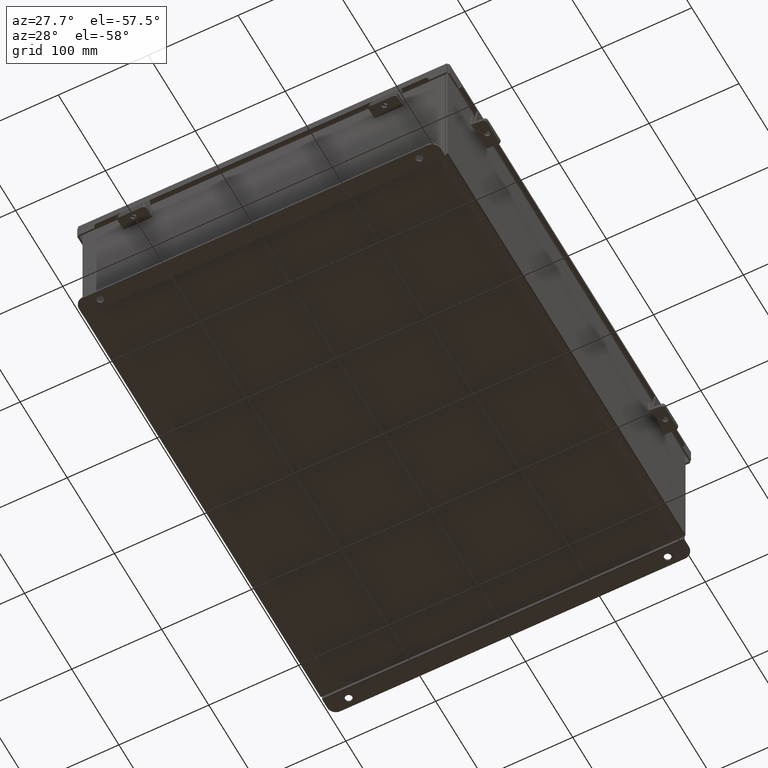
[diagram: clean part render]
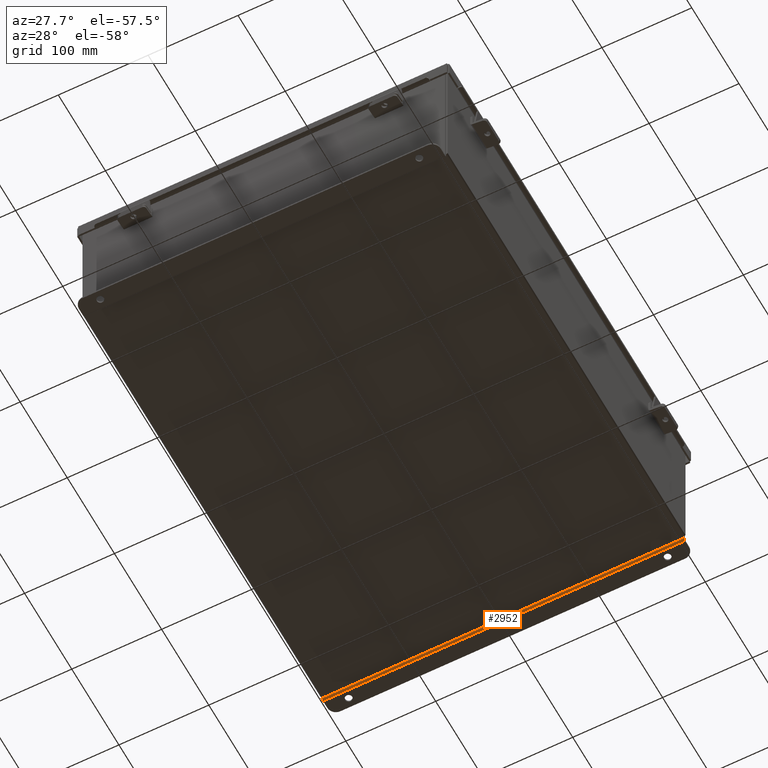
[diagram: same view with one face highlighted and labeled with its STEP entity id]
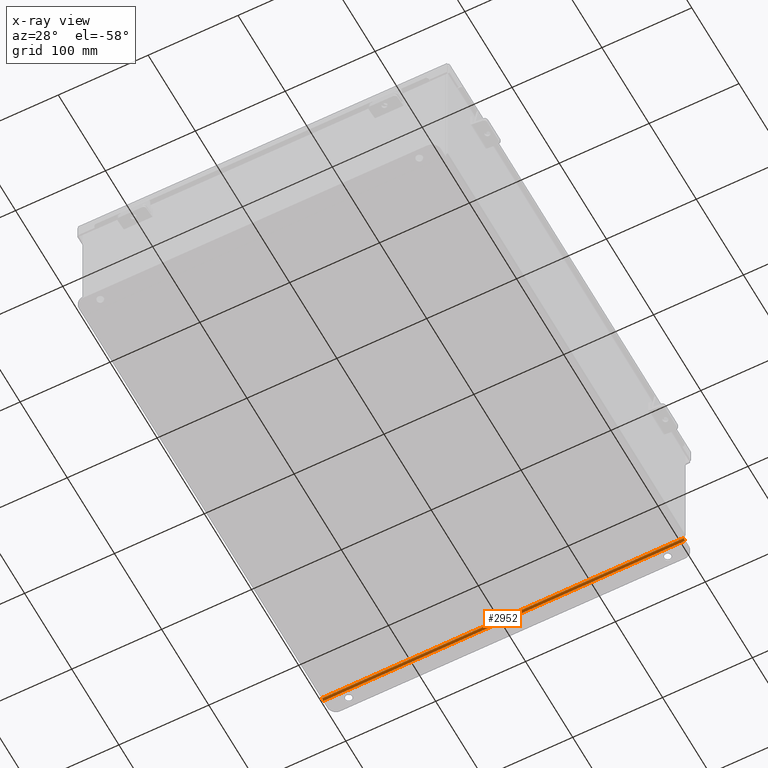
[diagram: x-ray of the same camera — body ghosted, the highlighted face saturated]
A machine part, auxiliary view. The second image highlights one B-rep face of the part: STEP entity #2952.
The next image is the same camera in x-ray: the body ghosted, the highlighted face saturated — about 0% of this face is hidden behind the body in this view.
In plain terms, the highlighted cylindrical surface (edge-blend (fillet) strip) has radius 2.2276 mm, axis along (-1, 0, 0).
Its self-contained STEP definition (entity closure, byte-faithful):
#619 = AXIS2_PLACEMENT_3D ( 'NONE', #4761, #9441, #5420 ) ;
#980 = EDGE_LOOP ( 'NONE', ( #1199, #9542, #3424, #6746 ) ) ;
#1133 = CARTESIAN_POINT ( 'NONE',  ( -7.925300000000000900, 0.01300000000000010700, -3.099299999999999900 ) ) ;
#1199 = ORIENTED_EDGE ( 'NONE', *, *, #6174, .F. ) ;
#1442 = CARTESIAN_POINT ( 'NONE',  ( -7.925300000000000900, 0.01300000000000010700, -3.099299999999999900 ) ) ;
#2199 = DIRECTION ( 'NONE',  ( 0.0000000000000000000, 0.0000000000000000000, 1.000000000000000000 ) ) ;
#2397 = DIRECTION ( 'NONE',  ( 1.000000000000000000, -0.0000000000000000000, -0.0000000000000000000 ) ) ;
#2952 = ADVANCED_FACE ( 'NONE', ( #6115 ), #3255, .T. ) ;
#3255 = CYLINDRICAL_SURFACE ( 'NONE', #4351, 0.08770000000000026400 ) ;
#3272 = VECTOR ( 'NONE', #4987, 39.37007874015748100 ) ;
#3328 = VERTEX_POINT ( 'NONE', #8626 ) ;
#3424 = ORIENTED_EDGE ( 'NONE', *, *, #9806, .T. ) ;
#3668 = CARTESIAN_POINT ( 'NONE',  ( 7.925299999999998200, 0.01300000000000010700, -3.187000000000000300 ) ) ;
#4351 = AXIS2_PLACEMENT_3D ( 'NONE', #1133, #6820, #7330 ) ;
#4761 = CARTESIAN_POINT ( 'NONE',  ( 7.925299999999998200, 0.01300000000000010700, -3.099299999999999900 ) ) ;
#4987 = DIRECTION ( 'NONE',  ( 1.000000000000000000, -0.0000000000000000000, -0.0000000000000000000 ) ) ;
#5058 = VERTEX_POINT ( 'NONE', #3668 ) ;
#5337 = CARTESIAN_POINT ( 'NONE',  ( -7.925300000000000900, -0.07470000000000015500, -3.099299999999999900 ) ) ;
#5386 = EDGE_CURVE ( 'NONE', #3328, #5058, #7427, .T. ) ;
#5420 = DIRECTION ( 'NONE',  ( 0.0000000000000000000, 0.0000000000000000000, 1.000000000000000000 ) ) ;
#5767 = VERTEX_POINT ( 'NONE', #5337 ) ;
#5885 = LINE ( 'NONE', #9509, #3272 ) ;
#6115 = FACE_OUTER_BOUND ( 'NONE', #980, .T. ) ;
#6174 = EDGE_CURVE ( 'NONE', #5767, #3328, #5885, .T. ) ;
#6219 = AXIS2_PLACEMENT_3D ( 'NONE', #1442, #6898, #2199 ) ;
#6307 = VECTOR ( 'NONE', #2397, 39.37007874015748100 ) ;
#6746 = ORIENTED_EDGE ( 'NONE', *, *, #5386, .F. ) ;
#6820 = DIRECTION ( 'NONE',  ( -1.000000000000000000, 0.0000000000000000000, 0.0000000000000000000 ) ) ;
#6898 = DIRECTION ( 'NONE',  ( -1.000000000000000000, 0.0000000000000000000, 0.0000000000000000000 ) ) ;
#7016 = LINE ( 'NONE', #9312, #6307 ) ;
#7211 = CIRCLE ( 'NONE', #6219, 0.08770000000000026400 ) ;
#7330 = DIRECTION ( 'NONE',  ( 0.0000000000000000000, -3.699053013085864000E-015, -1.000000000000000000 ) ) ;
#7427 = CIRCLE ( 'NONE', #619, 0.08770000000000026400 ) ;
#7576 = VERTEX_POINT ( 'NONE', #8750 ) ;
#7762 = EDGE_CURVE ( 'NONE', #7576, #5767, #7211, .T. ) ;
#8626 = CARTESIAN_POINT ( 'NONE',  ( 7.925299999999998200, -0.07470000000000015500, -3.099299999999999900 ) ) ;
#8750 = CARTESIAN_POINT ( 'NONE',  ( -7.925300000000000900, 0.01300000000000010700, -3.187000000000000300 ) ) ;
#9312 = CARTESIAN_POINT ( 'NONE',  ( 7.925299999999998200, 0.01300000000000010700, -3.187000000000000300 ) ) ;
#9441 = DIRECTION ( 'NONE',  ( 1.000000000000000000, -0.0000000000000000000, -0.0000000000000000000 ) ) ;
#9509 = CARTESIAN_POINT ( 'NONE',  ( -7.925300000000000900, -0.07470000000000015500, -3.099299999999999900 ) ) ;
#9542 = ORIENTED_EDGE ( 'NONE', *, *, #7762, .F. ) ;
#9806 = EDGE_CURVE ( 'NONE', #7576, #5058, #7016, .T. ) ;